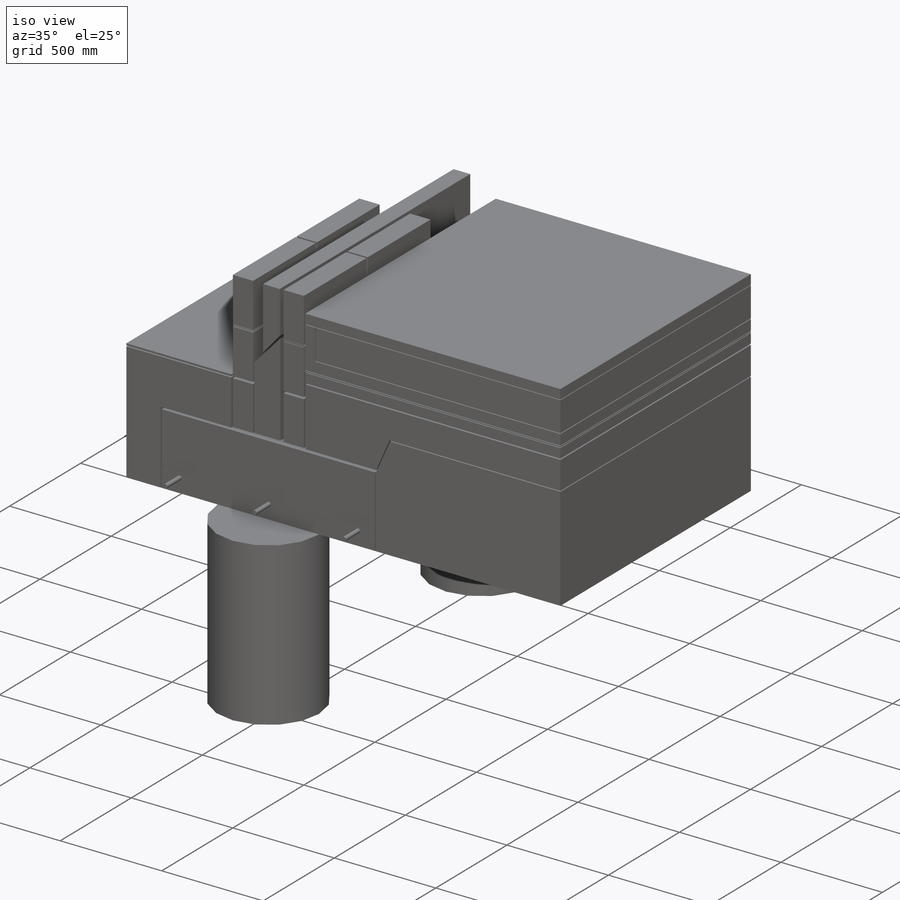
[diagram: iso view]
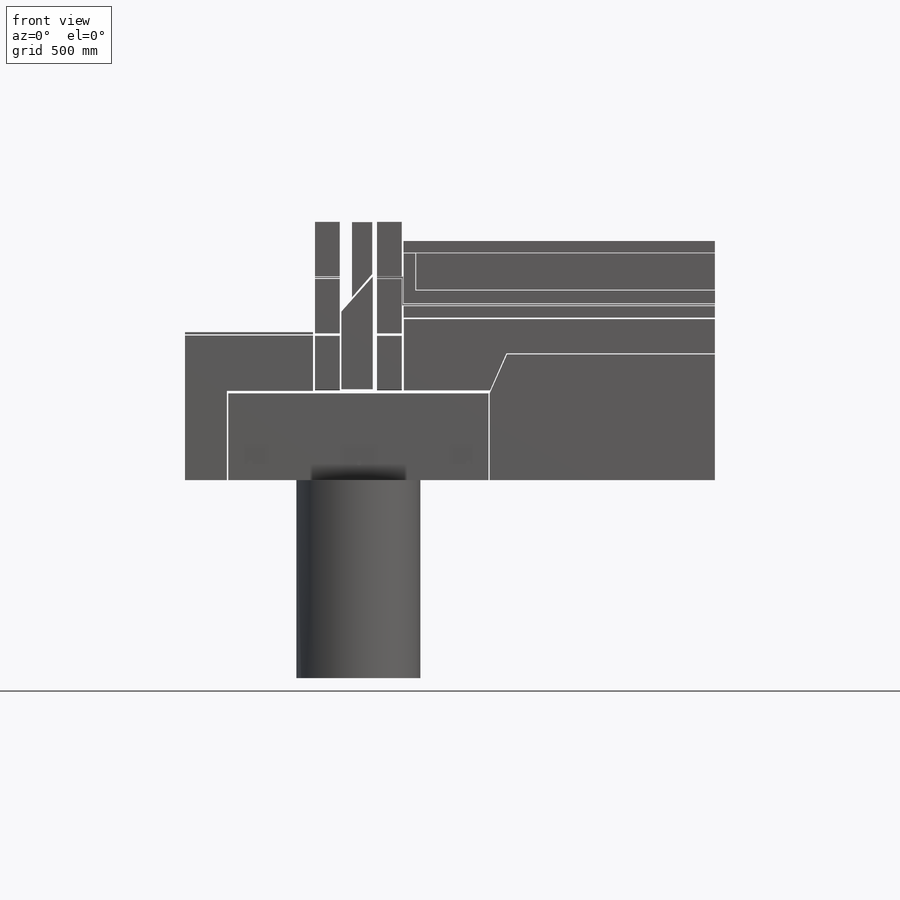
[diagram: front view]
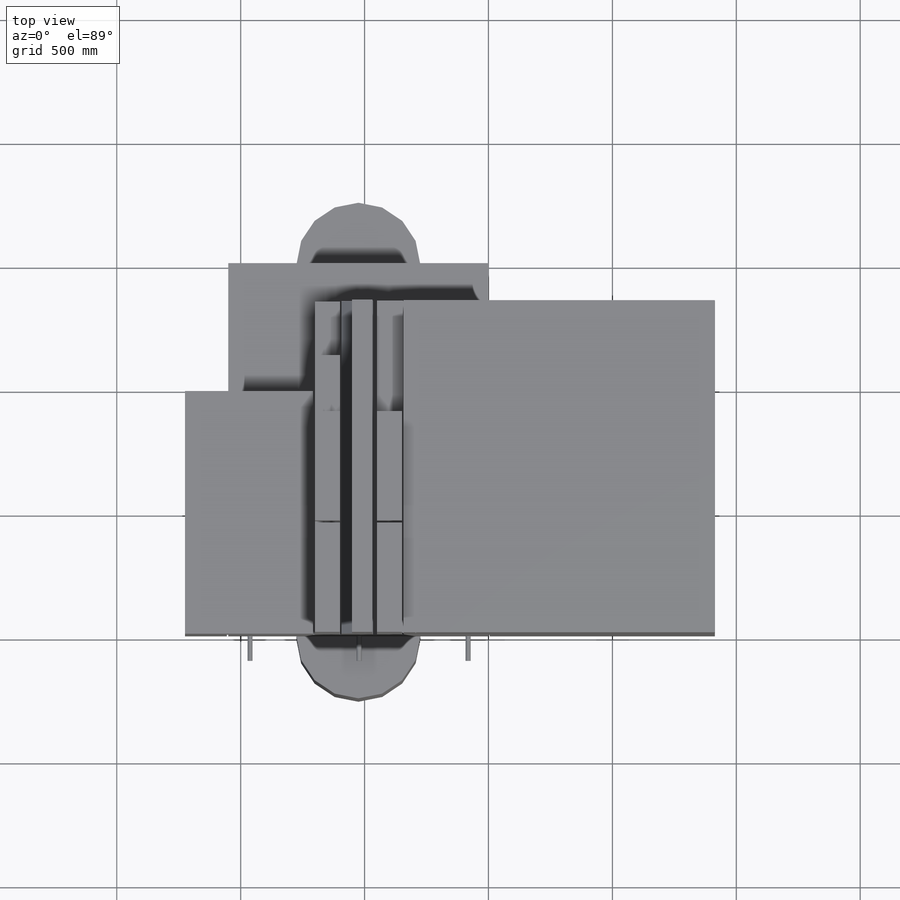
[diagram: top view]
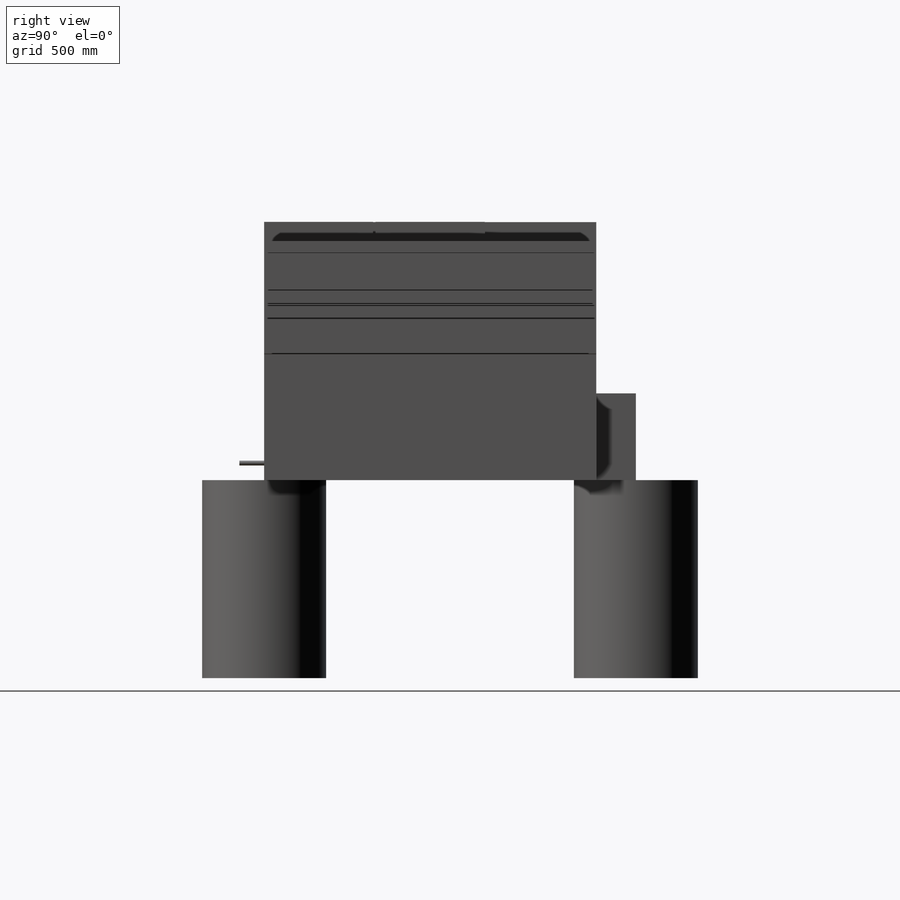
[diagram: right view]
SOLIDWORKS PART (.sldprt)
format: sldprt  version: not decoded by parser v0  size: 635,904 bytes
history: native  units: mm
features: sketch x22, extrude x22, material x1 (+15 scaffold rows collapsed)
feature tree (60):
  scaffold x15  (default folders/planes/origin — collapsed)
  material  "Material <not specified>"
  sketch  "Sketch1"  dims[D1=1050.0mm D2=350.0mm]
  extrude  "Extrude1"  Depth=1500mm
  sketch  "Sketch2"  dims[D1=150.0mm D2=100.0mm D3=100.0mm D4=350.0mm D5=350.0mm]
  extrude  "Extrude2"  Depth=440mm
  sketch  "Sketch3"  dims[D1=440.0mm D2=220.0mm D3=10.0mm D4=440.0mm D5=220.0mm D6=10.0mm]
  extrude  "Extrude3"  Depth=100mm
  sketch  "Sketch4"
  extrude  "Extrude4"  Depth=100mm
  sketch  "Sketch6"  dims[D1=215.0mm D2=220.0mm D3=10.0mm D4=~445.705034mm D5=10.0mm D6=440.0mm D7=220.0mm D8=10.0mm]
  extrude  "Extrude6"  Depth=100mm
  sketch  "Sketch7"
  extrude  "Extrude7"  Depth=100mm
  sketch  "Sketch8"  dims[D1=220.0mm D2=440.0mm D3=440.0mm D4=220.0mm D5=10.0mm D6=10.0mm]
  extrude  "Extrude8"  Depth=100mm
  sketch  "Sketch9"
  extrude  "Extrude9"  Depth=100mm
  sketch  "Sketch10"  dims[D1=20.0mm D2=20.0mm D3=20.0mm D4=440.0mm D5=440.0mm]
  extrude  "Extrude10"  Depth=100mm
  sketch  "Sketch11"
  extrude  "Extrude11"  [1 undecoded]
  sketch  "Sketch12"
  extrude  "Extrude12"  [1 undecoded]
  sketch  "Sketch13"
  extrude  "Extrude13"  [1 undecoded]
  sketch  "Sketch26"
  extrude  "Extrude24"  [1 undecoded]
  sketch  "Sketch27"
  extrude  "Extrude25"  [1 undecoded]
  sketch  "Sketch28"
  extrude  "Extrude26"  [1 undecoded]
  sketch  "Sketch29"
  extrude  "Extrude27"  [1 undecoded]
  sketch  "Sketch30"
  extrude  "Extrude28"  [1 undecoded]
  sketch  "Sketch19"
  extrude  "Extrude19"  [1 undecoded]
  sketch  "Sketch20"  dims[D1=500.0mm D2=500.0mm]
  extrude  "Extrude20"  Depth=799mm
  sketch  "Sketch21"
  extrude  "Extrude21"  Depth=980mm
  sketch  "Sketch24"
  extrude  "Extrude22"  [1 undecoded]
  sketch  "Sketch25"
  extrude  "Extrude23"  [1 undecoded]
decode coverage: 18 of 44 modeling features carry decoded parameters
note: ~ marks probable driven/reference dimensions
note: 11 parameter values undecoded
summary: no parameter record found for 11 features
note: suppression state not decoded; provenance and decode notes live in map.json
